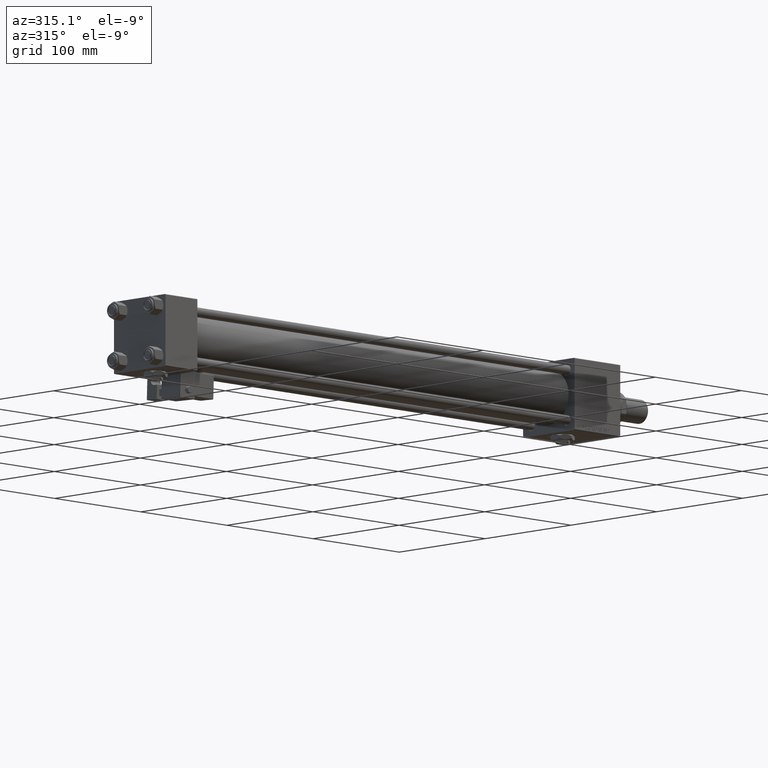
[diagram: clean part render]
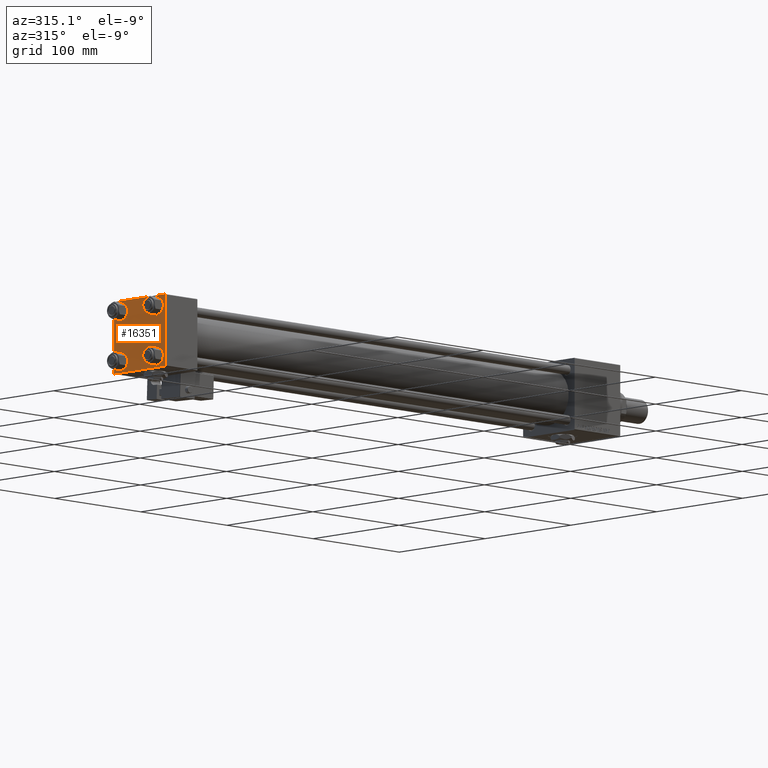
[diagram: same view with one face highlighted and labeled with its STEP entity id]
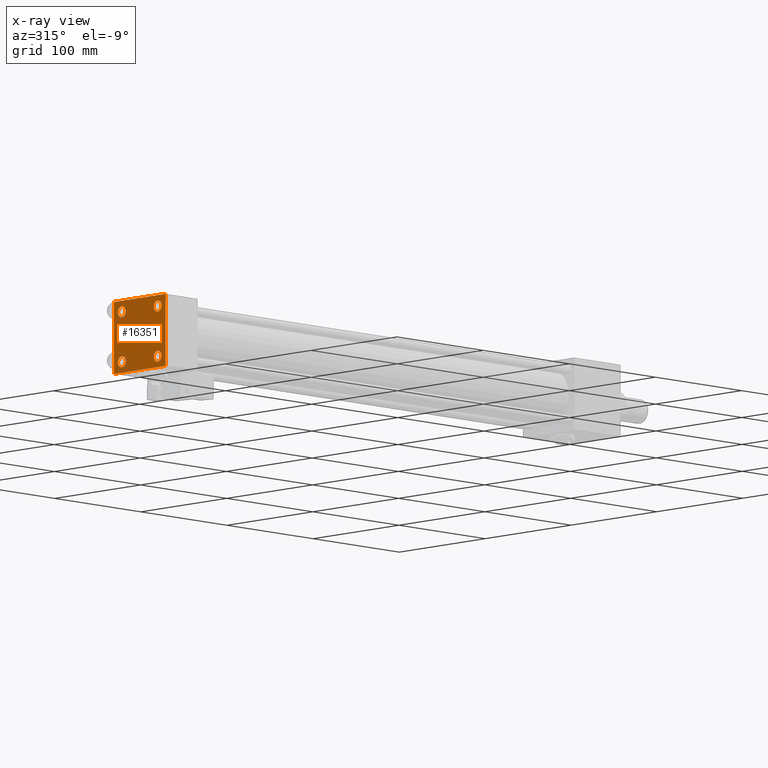
[diagram: x-ray of the same camera — body ghosted, the highlighted face saturated]
A machine part, auxiliary view. The second image highlights one B-rep face of the part: STEP entity #16351.
The next image is the same camera in x-ray: the body ghosted, the highlighted face saturated — about 0% of this face is hidden behind the body in this view.
In plain terms, the highlighted planar face has unit normal (-1, 0, 0).
Its self-contained STEP definition (entity closure, byte-faithful):
#275 = LINE ( 'NONE', #28027, #17566 ) ;
#411 = CARTESIAN_POINT ( 'NONE',  ( 0.000000000000000000, 0.000000000000000000, 0.000000000000000000 ) ) ;
#510 = AXIS2_PLACEMENT_3D ( 'NONE', #2830, #37247, #7256 ) ;
#533 = ORIENTED_EDGE ( 'NONE', *, *, #50273, .T. ) ;
#881 = DIRECTION ( 'NONE',  ( 1.000000000000000000, -0.000000000000000000, 0.000000000000000000 ) ) ;
#1339 = CARTESIAN_POINT ( 'NONE',  ( 0.000000000000000000, -20.84999999999999076, -20.85000000000000497 ) ) ;
#1683 = LINE ( 'NONE', #10003, #13048 ) ;
#1718 = EDGE_CURVE ( 'NONE', #38258, #43778, #34750, .T. ) ;
#2308 = DIRECTION ( 'NONE',  ( 1.000000000000000000, -0.000000000000000000, 0.000000000000000000 ) ) ;
#2664 = ORIENTED_EDGE ( 'NONE', *, *, #41283, .T. ) ;
#2789 = EDGE_LOOP ( 'NONE', ( #8793, #10162 ) ) ;
#2830 = CARTESIAN_POINT ( 'NONE',  ( 0.000000000000000000, 20.84999999999999787, 20.85000000000000142 ) ) ;
#3513 = EDGE_LOOP ( 'NONE', ( #51826, #40745, #533, #43570, #33873, #39026, #14070, #29645 ) ) ;
#3528 = EDGE_CURVE ( 'NONE', #53897, #16597, #28726, .T. ) ;
#4842 = PLANE ( 'NONE',  #16687 ) ;
#4865 = LINE ( 'NONE', #21796, #6707 ) ;
#6192 = VECTOR ( 'NONE', #53242, 1000.000000000000114 ) ;
#6707 = VECTOR ( 'NONE', #39018, 1000.000000000000114 ) ;
#6720 = CARTESIAN_POINT ( 'NONE',  ( 0.000000000000000000, -20.84999999999999076, 25.35000000000002274 ) ) ;
#7256 = DIRECTION ( 'NONE',  ( 0.000000000000000000, 0.000000000000000000, 1.000000000000000000 ) ) ;
#7344 = EDGE_CURVE ( 'NONE', #45494, #16597, #4865, .T. ) ;
#7559 = EDGE_CURVE ( 'NONE', #40306, #33343, #50182, .T. ) ;
#8321 = DIRECTION ( 'NONE',  ( 0.000000000000000000, 0.000000000000000000, 1.000000000000000000 ) ) ;
#8390 = CARTESIAN_POINT ( 'NONE',  ( 0.000000000000000000, 29.49999999999999289, 30.00000000000000000 ) ) ;
#8435 = LINE ( 'NONE', #34002, #47167 ) ;
#8793 = ORIENTED_EDGE ( 'NONE', *, *, #7559, .T. ) ;
#9740 = ORIENTED_EDGE ( 'NONE', *, *, #36066, .T. ) ;
#10003 = CARTESIAN_POINT ( 'NONE',  ( 0.000000000000000000, 29.99999999999999289, 30.00000000000000000 ) ) ;
#10139 = LINE ( 'NONE', #26525, #15570 ) ;
#10162 = ORIENTED_EDGE ( 'NONE', *, *, #40281, .T. ) ;
#10222 = EDGE_CURVE ( 'NONE', #31933, #26374, #1683, .T. ) ;
#10464 = EDGE_CURVE ( 'NONE', #23601, #35395, #14828, .T. ) ;
#10660 = CARTESIAN_POINT ( 'NONE',  ( 0.000000000000000000, -29.49999999999998579, 29.99999999999999289 ) ) ;
#11812 = CARTESIAN_POINT ( 'NONE',  ( 0.000000000000000000, 29.99999999999999289, -29.50000000000000000 ) ) ;
#12216 = DIRECTION ( 'NONE',  ( 1.000000000000000000, -0.000000000000000000, 0.000000000000000000 ) ) ;
#12983 = VERTEX_POINT ( 'NONE', #11812 ) ;
#13048 = VECTOR ( 'NONE', #27218, 1000.000000000000000 ) ;
#13161 = FACE_BOUND ( 'NONE', #30758, .T. ) ;
#13704 = DIRECTION ( 'NONE',  ( -0.000000000000000000, 0.000000000000000000, 1.000000000000000000 ) ) ;
#14070 = ORIENTED_EDGE ( 'NONE', *, *, #10222, .F. ) ;
#14644 = DIRECTION ( 'NONE',  ( 0.000000000000000000, 0.000000000000000000, 1.000000000000000000 ) ) ;
#14704 = AXIS2_PLACEMENT_3D ( 'NONE', #37259, #54173, #16135 ) ;
#14828 = CIRCLE ( 'NONE', #18357, 4.500000000000017764 ) ;
#15300 = EDGE_CURVE ( 'NONE', #19490, #12983, #28763, .T. ) ;
#15570 = VECTOR ( 'NONE', #52068, 1000.000000000000114 ) ;
#16135 = DIRECTION ( 'NONE',  ( 0.000000000000000000, 0.000000000000000000, 1.000000000000000000 ) ) ;
#16351 = ADVANCED_FACE ( 'NONE', ( #26485, #52030, #13161, #22048, #38183 ), #4842, .T. ) ;
#16597 = VERTEX_POINT ( 'NONE', #51146 ) ;
#16687 = AXIS2_PLACEMENT_3D ( 'NONE', #411, #51480, #13704 ) ;
#16814 = CIRCLE ( 'NONE', #37261, 4.500000000000017764 ) ;
#17535 = CARTESIAN_POINT ( 'NONE',  ( 0.000000000000000000, -20.84999999999999076, 20.85000000000000497 ) ) ;
#17566 = VECTOR ( 'NONE', #44962, 1000.000000000000000 ) ;
#17810 = DIRECTION ( 'NONE',  ( 0.000000000000000000, 0.000000000000000000, 1.000000000000000000 ) ) ;
#18357 = AXIS2_PLACEMENT_3D ( 'NONE', #1339, #30784, #14644 ) ;
#18363 = EDGE_LOOP ( 'NONE', ( #33814, #29882 ) ) ;
#18399 = CARTESIAN_POINT ( 'NONE',  ( 0.000000000000000000, 20.84999999999999787, -16.34999999999998366 ) ) ;
#18637 = VERTEX_POINT ( 'NONE', #28932 ) ;
#19088 = EDGE_CURVE ( 'NONE', #53897, #26374, #41593, .T. ) ;
#19490 = VERTEX_POINT ( 'NONE', #36120 ) ;
#19870 = DIRECTION ( 'NONE',  ( 0.000000000000000000, 0.000000000000000000, -1.000000000000000000 ) ) ;
#21422 = AXIS2_PLACEMENT_3D ( 'NONE', #28430, #33417, #24520 ) ;
#21796 = CARTESIAN_POINT ( 'NONE',  ( 0.000000000000000000, -29.75000000000001066, -29.75000000000001066 ) ) ;
#21823 = AXIS2_PLACEMENT_3D ( 'NONE', #28130, #2308, #52555 ) ;
#22048 = FACE_BOUND ( 'NONE', #2789, .T. ) ;
#22308 = CARTESIAN_POINT ( 'NONE',  ( 0.000000000000000000, -20.84999999999999076, 16.34999999999998721 ) ) ;
#23601 = VERTEX_POINT ( 'NONE', #35507 ) ;
#24292 = CARTESIAN_POINT ( 'NONE',  ( 0.000000000000000000, -29.50000000000000000, -30.00000000000000711 ) ) ;
#24520 = DIRECTION ( 'NONE',  ( 0.000000000000000000, 0.000000000000000000, 1.000000000000000000 ) ) ;
#24649 = CIRCLE ( 'NONE', #29094, 4.500000000000017764 ) ;
#26374 = VERTEX_POINT ( 'NONE', #10660 ) ;
#26485 = FACE_BOUND ( 'NONE', #42933, .T. ) ;
#26525 = CARTESIAN_POINT ( 'NONE',  ( 0.000000000000000000, 29.74999999999999645, 29.74999999999999645 ) ) ;
#27218 = DIRECTION ( 'NONE',  ( 0.000000000000000000, -1.000000000000000000, -1.156482317317871725E-16 ) ) ;
#27335 = VERTEX_POINT ( 'NONE', #18399 ) ;
#27992 = CARTESIAN_POINT ( 'NONE',  ( -0.000000000000000000, -29.74999999999999645, 29.74999999999999645 ) ) ;
#28027 = CARTESIAN_POINT ( 'NONE',  ( 0.000000000000000000, 29.99999999999999289, -30.00000000000000000 ) ) ;
#28053 = EDGE_CURVE ( 'NONE', #12983, #45569, #8435, .T. ) ;
#28130 = CARTESIAN_POINT ( 'NONE',  ( 0.000000000000000000, 20.84999999999999787, -20.85000000000000142 ) ) ;
#28246 = ORIENTED_EDGE ( 'NONE', *, *, #49312, .T. ) ;
#28430 = CARTESIAN_POINT ( 'NONE',  ( 0.000000000000000000, -20.84999999999999076, 20.85000000000000497 ) ) ;
#28726 = LINE ( 'NONE', #45661, #49023 ) ;
#28763 = LINE ( 'NONE', #29295, #49489 ) ;
#28932 = CARTESIAN_POINT ( 'NONE',  ( 0.000000000000000000, 20.84999999999999787, -25.35000000000001918 ) ) ;
#29094 = AXIS2_PLACEMENT_3D ( 'NONE', #33615, #12216, #8321 ) ;
#29295 = CARTESIAN_POINT ( 'NONE',  ( 0.000000000000000000, 29.99999999999999289, 30.00000000000000000 ) ) ;
#29645 = ORIENTED_EDGE ( 'NONE', *, *, #40857, .T. ) ;
#29882 = ORIENTED_EDGE ( 'NONE', *, *, #10464, .T. ) ;
#30758 = EDGE_LOOP ( 'NONE', ( #2664, #28246 ) ) ;
#30784 = DIRECTION ( 'NONE',  ( 1.000000000000000000, -0.000000000000000000, 0.000000000000000000 ) ) ;
#31933 = VERTEX_POINT ( 'NONE', #8390 ) ;
#33006 = CARTESIAN_POINT ( 'NONE',  ( 0.000000000000000000, -20.84999999999999076, -16.34999999999998721 ) ) ;
#33343 = VERTEX_POINT ( 'NONE', #39634 ) ;
#33417 = DIRECTION ( 'NONE',  ( 1.000000000000000000, -0.000000000000000000, 0.000000000000000000 ) ) ;
#33615 = CARTESIAN_POINT ( 'NONE',  ( 0.000000000000000000, 20.84999999999999787, -20.85000000000000142 ) ) ;
#33814 = ORIENTED_EDGE ( 'NONE', *, *, #53496, .T. ) ;
#33873 = ORIENTED_EDGE ( 'NONE', *, *, #3528, .F. ) ;
#34002 = CARTESIAN_POINT ( 'NONE',  ( 0.000000000000000000, 29.74999999999957723, -29.75000000000040501 ) ) ;
#34148 = CIRCLE ( 'NONE', #43020, 4.500000000000017764 ) ;
#34535 = DIRECTION ( 'NONE',  ( -0.000000000000000000, -0.7071067811865574537, -0.7071067811865376918 ) ) ;
#34750 = CIRCLE ( 'NONE', #21422, 4.500000000000017764 ) ;
#35395 = VERTEX_POINT ( 'NONE', #33006 ) ;
#35507 = CARTESIAN_POINT ( 'NONE',  ( 0.000000000000000000, -20.84999999999999076, -25.35000000000002274 ) ) ;
#36066 = EDGE_CURVE ( 'NONE', #43778, #38258, #34148, .T. ) ;
#36120 = CARTESIAN_POINT ( 'NONE',  ( 0.000000000000000000, 29.99999999999999289, 29.50000000000000000 ) ) ;
#36878 = CIRCLE ( 'NONE', #510, 4.500000000000017764 ) ;
#36941 = ORIENTED_EDGE ( 'NONE', *, *, #1718, .T. ) ;
#37247 = DIRECTION ( 'NONE',  ( 1.000000000000000000, -0.000000000000000000, 0.000000000000000000 ) ) ;
#37259 = CARTESIAN_POINT ( 'NONE',  ( 0.000000000000000000, 20.84999999999999787, 20.85000000000000142 ) ) ;
#37261 = AXIS2_PLACEMENT_3D ( 'NONE', #46302, #42700, #46036 ) ;
#37781 = CIRCLE ( 'NONE', #21823, 4.500000000000017764 ) ;
#38183 = FACE_OUTER_BOUND ( 'NONE', #3513, .T. ) ;
#38258 = VERTEX_POINT ( 'NONE', #22308 ) ;
#39018 = DIRECTION ( 'NONE',  ( 0.000000000000000000, -0.7071067811865474617, 0.7071067811865474617 ) ) ;
#39026 = ORIENTED_EDGE ( 'NONE', *, *, #19088, .T. ) ;
#39634 = CARTESIAN_POINT ( 'NONE',  ( 0.000000000000000000, 20.84999999999999787, 16.34999999999998366 ) ) ;
#40281 = EDGE_CURVE ( 'NONE', #33343, #40306, #36878, .T. ) ;
#40306 = VERTEX_POINT ( 'NONE', #41699 ) ;
#40745 = ORIENTED_EDGE ( 'NONE', *, *, #28053, .T. ) ;
#40857 = EDGE_CURVE ( 'NONE', #31933, #19490, #10139, .T. ) ;
#41283 = EDGE_CURVE ( 'NONE', #27335, #18637, #37781, .T. ) ;
#41593 = LINE ( 'NONE', #27992, #6192 ) ;
#41699 = CARTESIAN_POINT ( 'NONE',  ( 0.000000000000000000, 20.84999999999999787, 25.35000000000001918 ) ) ;
#42700 = DIRECTION ( 'NONE',  ( 1.000000000000000000, -0.000000000000000000, 0.000000000000000000 ) ) ;
#42906 = CARTESIAN_POINT ( 'NONE',  ( 0.000000000000000000, -30.00000000000000000, 29.49999999999999289 ) ) ;
#42933 = EDGE_LOOP ( 'NONE', ( #9740, #36941 ) ) ;
#43020 = AXIS2_PLACEMENT_3D ( 'NONE', #17535, #881, #17810 ) ;
#43570 = ORIENTED_EDGE ( 'NONE', *, *, #7344, .T. ) ;
#43778 = VERTEX_POINT ( 'NONE', #6720 ) ;
#44962 = DIRECTION ( 'NONE',  ( 0.000000000000000000, -1.000000000000000000, -1.156482317317871725E-16 ) ) ;
#45494 = VERTEX_POINT ( 'NONE', #24292 ) ;
#45569 = VERTEX_POINT ( 'NONE', #46478 ) ;
#45661 = CARTESIAN_POINT ( 'NONE',  ( 0.000000000000000000, -30.00000000000000000, 29.99999999999999289 ) ) ;
#46036 = DIRECTION ( 'NONE',  ( 0.000000000000000000, 0.000000000000000000, 1.000000000000000000 ) ) ;
#46302 = CARTESIAN_POINT ( 'NONE',  ( 0.000000000000000000, -20.84999999999999076, -20.85000000000000497 ) ) ;
#46478 = CARTESIAN_POINT ( 'NONE',  ( 0.000000000000000000, 29.49999999999997868, -30.00000000000000000 ) ) ;
#47167 = VECTOR ( 'NONE', #34535, 999.9999999999998863 ) ;
#49023 = VECTOR ( 'NONE', #50080, 1000.000000000000000 ) ;
#49312 = EDGE_CURVE ( 'NONE', #18637, #27335, #24649, .T. ) ;
#49489 = VECTOR ( 'NONE', #19870, 1000.000000000000000 ) ;
#50080 = DIRECTION ( 'NONE',  ( 0.000000000000000000, 0.000000000000000000, -1.000000000000000000 ) ) ;
#50182 = CIRCLE ( 'NONE', #14704, 4.500000000000017764 ) ;
#50273 = EDGE_CURVE ( 'NONE', #45569, #45494, #275, .T. ) ;
#51146 = CARTESIAN_POINT ( 'NONE',  ( 0.000000000000000000, -30.00000000000000000, -29.50000000000001776 ) ) ;
#51480 = DIRECTION ( 'NONE',  ( -1.000000000000000000, 0.000000000000000000, -0.000000000000000000 ) ) ;
#51826 = ORIENTED_EDGE ( 'NONE', *, *, #15300, .T. ) ;
#52030 = FACE_BOUND ( 'NONE', #18363, .T. ) ;
#52068 = DIRECTION ( 'NONE',  ( 0.000000000000000000, 0.7071067811865474617, -0.7071067811865474617 ) ) ;
#52555 = DIRECTION ( 'NONE',  ( 0.000000000000000000, 0.000000000000000000, 1.000000000000000000 ) ) ;
#53242 = DIRECTION ( 'NONE',  ( -0.000000000000000000, 0.7071067811865474617, 0.7071067811865474617 ) ) ;
#53496 = EDGE_CURVE ( 'NONE', #35395, #23601, #16814, .T. ) ;
#53897 = VERTEX_POINT ( 'NONE', #42906 ) ;
#54173 = DIRECTION ( 'NONE',  ( 1.000000000000000000, -0.000000000000000000, 0.000000000000000000 ) ) ;